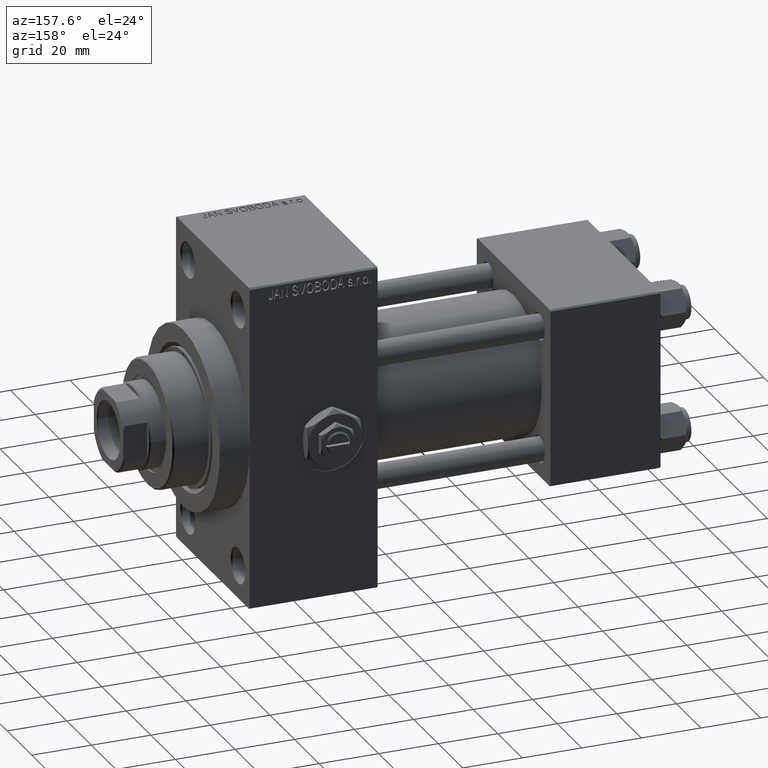
[diagram: clean part render]
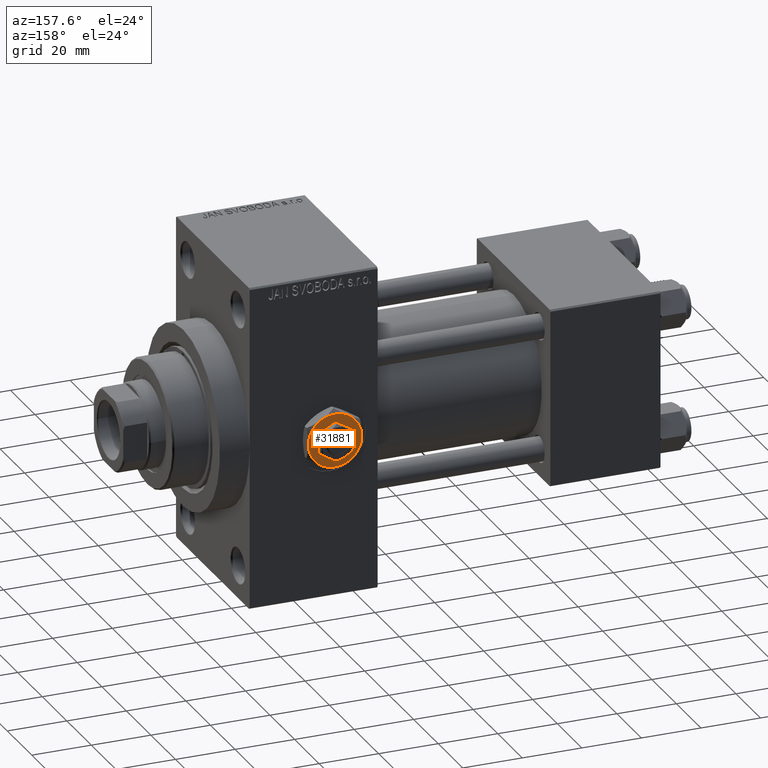
[diagram: same view with one face highlighted and labeled with its STEP entity id]
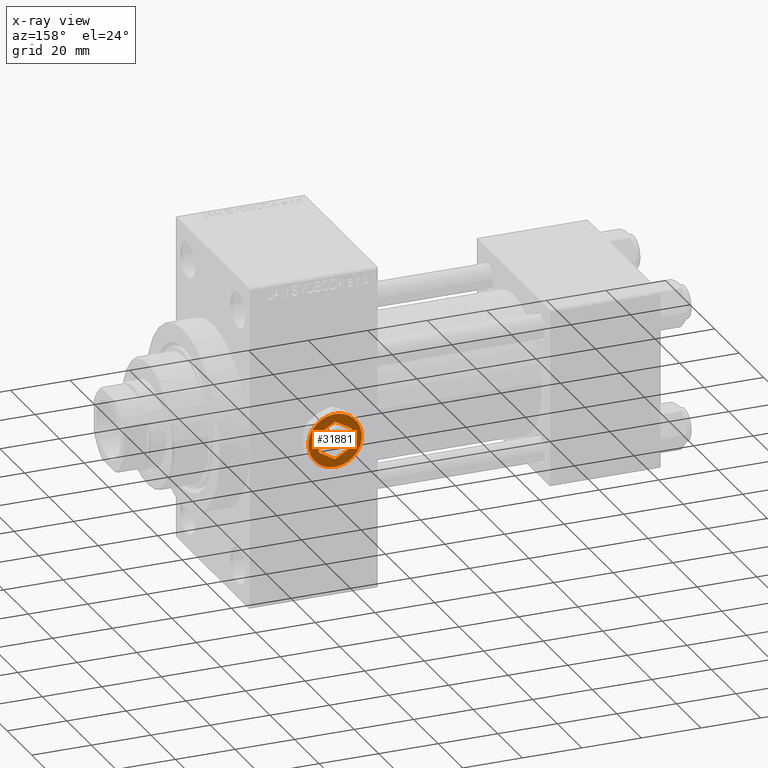
[diagram: x-ray of the same camera — body ghosted, the highlighted face saturated]
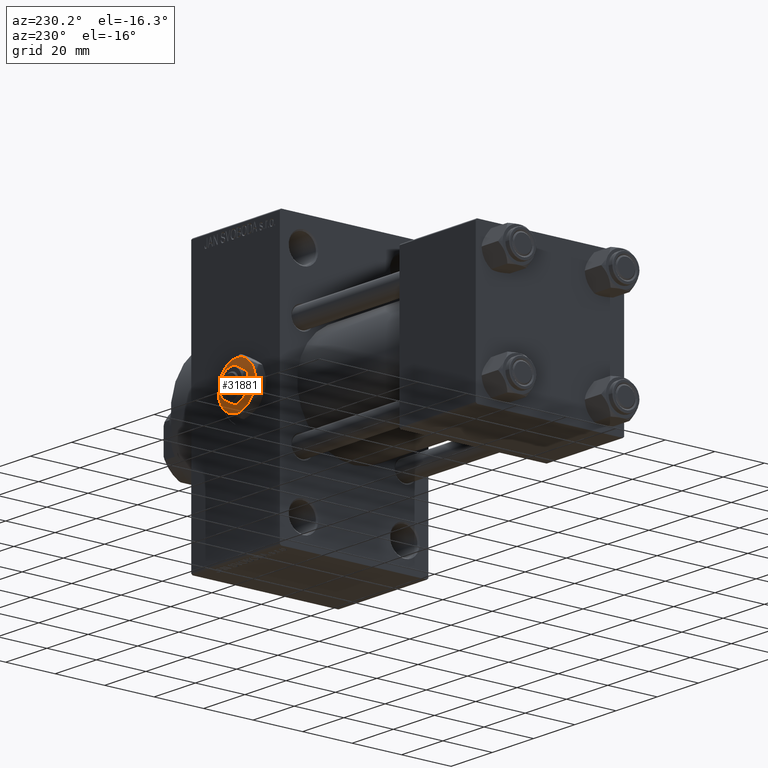
[diagram: same view with one face highlighted and labeled with its STEP entity id]
A machine part, auxiliary view. The second image highlights one B-rep face of the part: STEP entity #31881.
The next image is the same camera in x-ray: the body ghosted, the highlighted face saturated — about 0% of this face is hidden behind the body in this view.
A second angle (auxiliary view) of the same face is appended — the face is thin or edge-on in the first view.
In plain terms, the highlighted planar face has unit normal (0, 1, 0).
Its self-contained STEP definition (entity closure, byte-faithful):
#71 = DIRECTION ( 'NONE',  ( 1.000000000000000000, 0.000000000000000000, 0.000000000000000000 ) ) ;
#1212 = CARTESIAN_POINT ( 'NONE',  ( -4.499999999999998224, -7.794228634059947147, 4.299999999999999822 ) ) ;
#1683 = DIRECTION ( 'NONE',  ( 1.000000000000000000, 0.000000000000000000, 0.000000000000000000 ) ) ;
#3324 = VERTEX_POINT ( 'NONE', #22497 ) ;
#3438 = DIRECTION ( 'NONE',  ( 0.000000000000000000, 0.000000000000000000, 1.000000000000000000 ) ) ;
#3662 = CARTESIAN_POINT ( 'NONE',  ( 0.000000000000000000, 0.000000000000000000, 4.299999999999999822 ) ) ;
#3906 = DIRECTION ( 'NONE',  ( 1.000000000000000000, 0.000000000000000000, 0.000000000000000000 ) ) ;
#3948 = LINE ( 'NONE', #19013, #40009 ) ;
#4068 = FACE_BOUND ( 'NONE', #33076, .T. ) ;
#4179 = VERTEX_POINT ( 'NONE', #19526 ) ;
#4228 = EDGE_CURVE ( 'NONE', #38435, #25455, #34743, .T. ) ;
#4271 = CARTESIAN_POINT ( 'NONE',  ( 5.499999999999999112, 3.175426480542943075, 4.299999999999999822 ) ) ;
#4291 = CARTESIAN_POINT ( 'NONE',  ( 0.000000000000000000, 0.000000000000000000, 4.299999999999999822 ) ) ;
#4543 = ORIENTED_EDGE ( 'NONE', *, *, #22133, .T. ) ;
#4557 = EDGE_CURVE ( 'NONE', #22459, #38435, #33192, .T. ) ;
#4759 = ORIENTED_EDGE ( 'NONE', *, *, #6460, .T. ) ;
#4847 = AXIS2_PLACEMENT_3D ( 'NONE', #43358, #34945, #16364 ) ;
#5062 = VERTEX_POINT ( 'NONE', #24613 ) ;
#6059 = ORIENTED_EDGE ( 'NONE', *, *, #21731, .F. ) ;
#6112 = CARTESIAN_POINT ( 'NONE',  ( -5.500000000000000000, -3.175426480542942187, 4.299999999999999822 ) ) ;
#6460 = EDGE_CURVE ( 'NONE', #25455, #14433, #43538, .T. ) ;
#6948 = CARTESIAN_POINT ( 'NONE',  ( -5.500000000000000000, -3.175426480542942187, 4.299999999999999822 ) ) ;
#7425 = CARTESIAN_POINT ( 'NONE',  ( -5.500000000000000000, 3.175426480542941743, 4.299999999999999822 ) ) ;
#8297 = CARTESIAN_POINT ( 'NONE',  ( 5.500000000000000888, -3.175426480542940855, 4.299999999999999822 ) ) ;
#8477 = DIRECTION ( 'NONE',  ( -0.8660254037844387076, 0.4999999999999999445, 0.000000000000000000 ) ) ;
#8701 = EDGE_CURVE ( 'NONE', #16753, #4179, #47576, .T. ) ;
#10493 = CARTESIAN_POINT ( 'NONE',  ( 0.000000000000000000, 0.000000000000000000, 4.299999999999999822 ) ) ;
#10640 = VECTOR ( 'NONE', #8477, 1000.000000000000000 ) ;
#11025 = EDGE_CURVE ( 'NONE', #4179, #22459, #37216, .T. ) ;
#11729 = PLANE ( 'NONE',  #28276 ) ;
#12187 = CIRCLE ( 'NONE', #28811, 9.000000000000000000 ) ;
#12559 = CARTESIAN_POINT ( 'NONE',  ( 0.000000000000000000, 0.000000000000000000, 4.299999999999999822 ) ) ;
#13060 = DIRECTION ( 'NONE',  ( 0.000000000000000000, 0.000000000000000000, 1.000000000000000000 ) ) ;
#13414 = AXIS2_PLACEMENT_3D ( 'NONE', #10493, #29535, #30691 ) ;
#14433 = VERTEX_POINT ( 'NONE', #39858 ) ;
#16364 = DIRECTION ( 'NONE',  ( 1.000000000000000000, 0.000000000000000000, 0.000000000000000000 ) ) ;
#16753 = VERTEX_POINT ( 'NONE', #26082 ) ;
#16969 = ORIENTED_EDGE ( 'NONE', *, *, #29789, .F. ) ;
#18042 = EDGE_LOOP ( 'NONE', ( #4759, #4543, #21614, #28695, #26207, #21262 ) ) ;
#18735 = DIRECTION ( 'NONE',  ( 0.000000000000000000, 0.000000000000000000, 1.000000000000000000 ) ) ;
#19013 = CARTESIAN_POINT ( 'NONE',  ( -5.500000000000000000, 3.175426480542941743, 4.299999999999999822 ) ) ;
#19132 = CARTESIAN_POINT ( 'NONE',  ( 0.000000000000000000, 0.000000000000000000, 4.299999999999999822 ) ) ;
#19351 = DIRECTION ( 'NONE',  ( 0.000000000000000000, 0.000000000000000000, 1.000000000000000000 ) ) ;
#19526 = CARTESIAN_POINT ( 'NONE',  ( -4.500000000000000000, 7.794228634059947147, 4.299999999999999822 ) ) ;
#21045 = VERTEX_POINT ( 'NONE', #7425 ) ;
#21148 = LINE ( 'NONE', #36288, #40012 ) ;
#21262 = ORIENTED_EDGE ( 'NONE', *, *, #4228, .T. ) ;
#21614 = ORIENTED_EDGE ( 'NONE', *, *, #8701, .T. ) ;
#21731 = EDGE_CURVE ( 'NONE', #5062, #3324, #27533, .T. ) ;
#21885 = EDGE_CURVE ( 'NONE', #48336, #48796, #38119, .T. ) ;
#22125 = AXIS2_PLACEMENT_3D ( 'NONE', #4291, #19351, #71 ) ;
#22133 = EDGE_CURVE ( 'NONE', #14433, #16753, #12187, .T. ) ;
#22459 = VERTEX_POINT ( 'NONE', #25873 ) ;
#22497 = CARTESIAN_POINT ( 'NONE',  ( 0.000000000000000000, 6.350852961085883486, 4.299999999999999822 ) ) ;
#22620 = ORIENTED_EDGE ( 'NONE', *, *, #38415, .F. ) ;
#22830 = FACE_OUTER_BOUND ( 'NONE', #18042, .T. ) ;
#23079 = DIRECTION ( 'NONE',  ( 0.000000000000000000, 0.000000000000000000, 1.000000000000000000 ) ) ;
#23770 = AXIS2_PLACEMENT_3D ( 'NONE', #3662, #18735, #3906 ) ;
#24613 = CARTESIAN_POINT ( 'NONE',  ( 5.499999999999999112, 3.175426480542943075, 4.299999999999999822 ) ) ;
#25133 = DIRECTION ( 'NONE',  ( 0.8660254037844387076, -0.4999999999999998890, 0.000000000000000000 ) ) ;
#25455 = VERTEX_POINT ( 'NONE', #47065 ) ;
#25873 = CARTESIAN_POINT ( 'NONE',  ( -9.000000000000000000, 0.000000000000000000, 4.299999999999999822 ) ) ;
#26082 = CARTESIAN_POINT ( 'NONE',  ( 4.500000000000000000, 7.794228634059947147, 4.299999999999999822 ) ) ;
#26189 = CARTESIAN_POINT ( 'NONE',  ( 0.000000000000000000, 0.000000000000000000, 4.299999999999999822 ) ) ;
#26207 = ORIENTED_EDGE ( 'NONE', *, *, #4557, .T. ) ;
#26293 = LINE ( 'NONE', #6112, #44150 ) ;
#26948 = DIRECTION ( 'NONE',  ( 0.000000000000000000, -1.000000000000000000, 0.000000000000000000 ) ) ;
#27533 = LINE ( 'NONE', #4271, #10640 ) ;
#28276 = AXIS2_PLACEMENT_3D ( 'NONE', #19132, #23079, #34247 ) ;
#28695 = ORIENTED_EDGE ( 'NONE', *, *, #11025, .T. ) ;
#28811 = AXIS2_PLACEMENT_3D ( 'NONE', #26189, #3438, #45033 ) ;
#28869 = LINE ( 'NONE', #40253, #28978 ) ;
#28939 = EDGE_CURVE ( 'NONE', #3324, #21045, #21148, .T. ) ;
#28978 = VECTOR ( 'NONE', #36537, 1000.000000000000000 ) ;
#29535 = DIRECTION ( 'NONE',  ( 0.000000000000000000, 0.000000000000000000, 1.000000000000000000 ) ) ;
#29699 = ORIENTED_EDGE ( 'NONE', *, *, #43250, .F. ) ;
#29789 = EDGE_CURVE ( 'NONE', #48796, #5062, #28869, .T. ) ;
#30197 = CARTESIAN_POINT ( 'NONE',  ( -1.343581385738006573E-15, -6.350852961085881709, 4.299999999999999822 ) ) ;
#30691 = DIRECTION ( 'NONE',  ( 1.000000000000000000, 0.000000000000000000, 0.000000000000000000 ) ) ;
#31881 = ADVANCED_FACE ( 'NONE', ( #22830, #4068 ), #11729, .T. ) ;
#33076 = EDGE_LOOP ( 'NONE', ( #38515, #6059, #16969, #46614, #29699, #22620 ) ) ;
#33192 = CIRCLE ( 'NONE', #33977, 9.000000000000000000 ) ;
#33977 = AXIS2_PLACEMENT_3D ( 'NONE', #12559, #13060, #1683 ) ;
#34247 = DIRECTION ( 'NONE',  ( 1.000000000000000000, 0.000000000000000000, -0.000000000000000000 ) ) ;
#34743 = CIRCLE ( 'NONE', #13414, 9.000000000000000000 ) ;
#34945 = DIRECTION ( 'NONE',  ( 0.000000000000000000, 0.000000000000000000, 1.000000000000000000 ) ) ;
#35155 = DIRECTION ( 'NONE',  ( 0.8660254037844388186, 0.4999999999999997224, 0.000000000000000000 ) ) ;
#36288 = CARTESIAN_POINT ( 'NONE',  ( 0.000000000000000000, 6.350852961085883486, 4.299999999999999822 ) ) ;
#36453 = VERTEX_POINT ( 'NONE', #6948 ) ;
#36537 = DIRECTION ( 'NONE',  ( -2.731481088613017227E-16, 1.000000000000000000, 0.000000000000000000 ) ) ;
#36709 = VECTOR ( 'NONE', #35155, 1000.000000000000000 ) ;
#37216 = CIRCLE ( 'NONE', #23770, 9.000000000000000000 ) ;
#38119 = LINE ( 'NONE', #38617, #36709 ) ;
#38415 = EDGE_CURVE ( 'NONE', #21045, #36453, #3948, .T. ) ;
#38435 = VERTEX_POINT ( 'NONE', #1212 ) ;
#38515 = ORIENTED_EDGE ( 'NONE', *, *, #28939, .F. ) ;
#38617 = CARTESIAN_POINT ( 'NONE',  ( -1.343581385738006573E-15, -6.350852961085881709, 4.299999999999999822 ) ) ;
#39858 = CARTESIAN_POINT ( 'NONE',  ( 8.999999999999998224, 0.000000000000000000, 4.299999999999999822 ) ) ;
#40009 = VECTOR ( 'NONE', #26948, 1000.000000000000000 ) ;
#40012 = VECTOR ( 'NONE', #47709, 1000.000000000000114 ) ;
#40253 = CARTESIAN_POINT ( 'NONE',  ( 5.500000000000000888, -3.175426480542940855, 4.299999999999999822 ) ) ;
#43250 = EDGE_CURVE ( 'NONE', #36453, #48336, #26293, .T. ) ;
#43358 = CARTESIAN_POINT ( 'NONE',  ( 0.000000000000000000, 0.000000000000000000, 4.299999999999999822 ) ) ;
#43538 = CIRCLE ( 'NONE', #22125, 9.000000000000000000 ) ;
#44150 = VECTOR ( 'NONE', #25133, 1000.000000000000000 ) ;
#45033 = DIRECTION ( 'NONE',  ( 1.000000000000000000, 0.000000000000000000, 0.000000000000000000 ) ) ;
#46614 = ORIENTED_EDGE ( 'NONE', *, *, #21885, .F. ) ;
#47065 = CARTESIAN_POINT ( 'NONE',  ( 4.499999999999997335, -7.794228634059948035, 4.299999999999999822 ) ) ;
#47576 = CIRCLE ( 'NONE', #4847, 9.000000000000000000 ) ;
#47709 = DIRECTION ( 'NONE',  ( -0.8660254037844385966, -0.4999999999999999445, 0.000000000000000000 ) ) ;
#48336 = VERTEX_POINT ( 'NONE', #30197 ) ;
#48796 = VERTEX_POINT ( 'NONE', #8297 ) ;